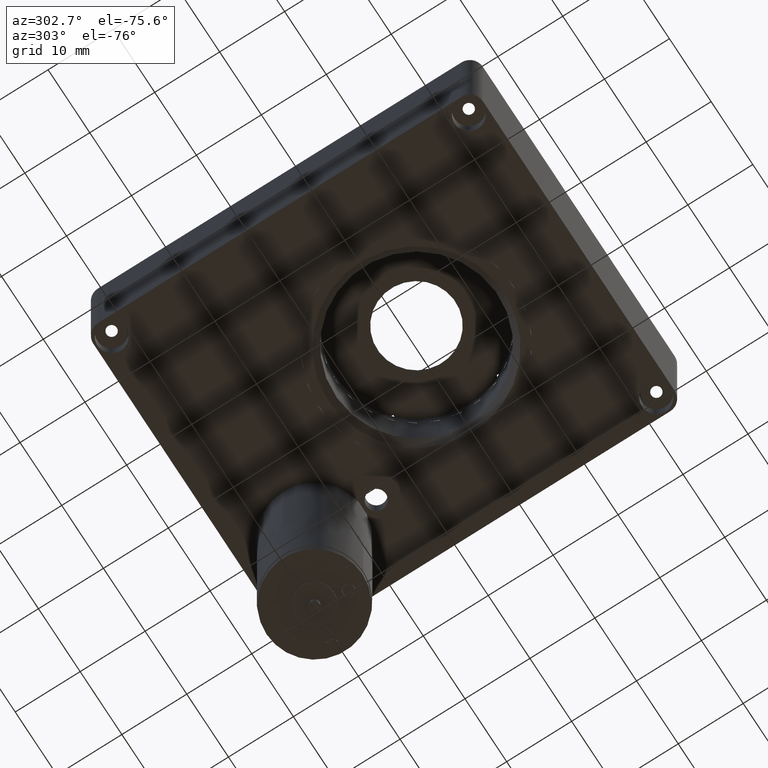
[diagram: clean part render]
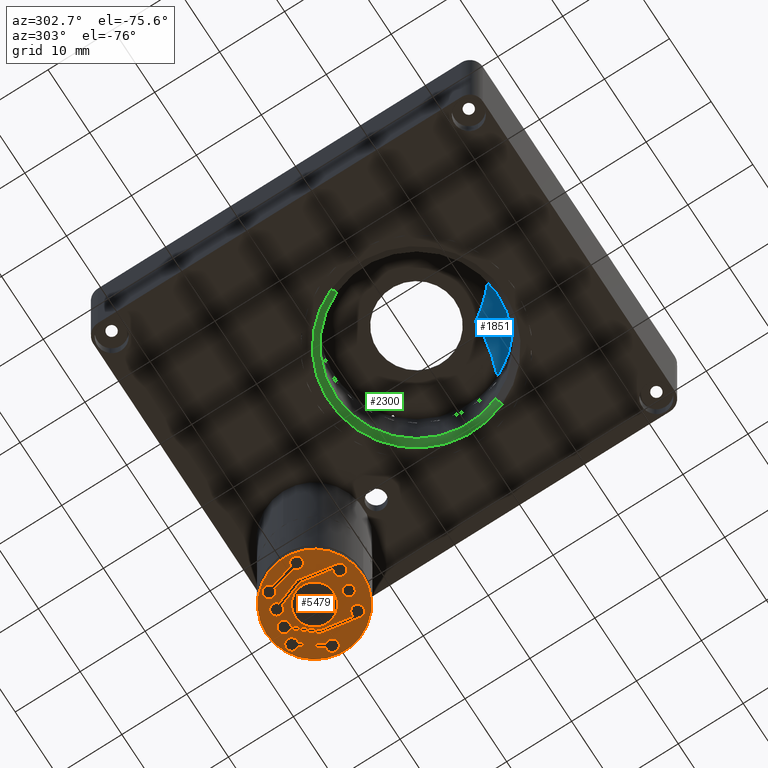
[diagram: same view with three faces highlighted in distinct colors, each labeled with its STEP entity id]
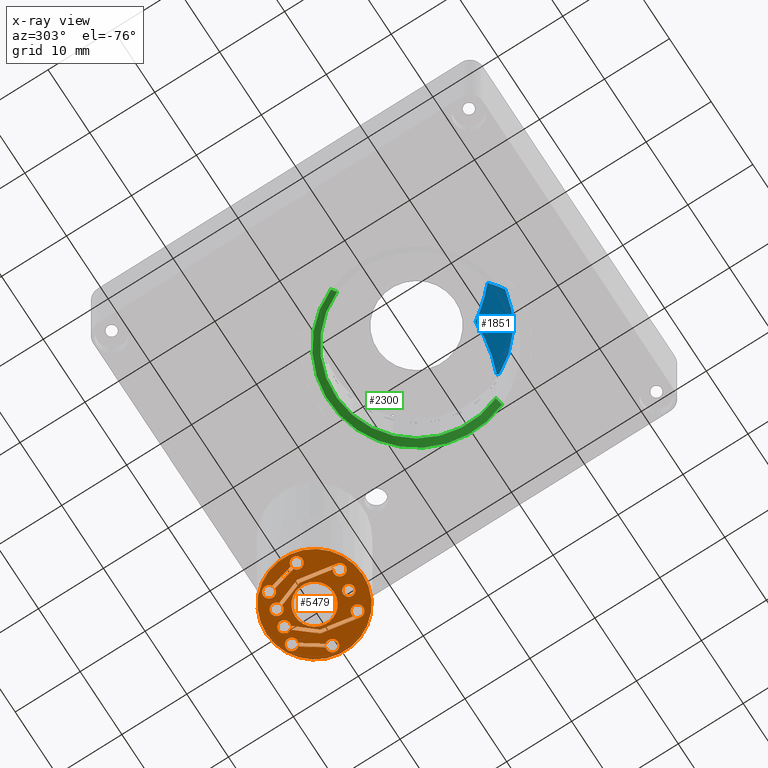
[diagram: x-ray of the same camera — body ghosted, the three highlighted faces saturated]
A machine part, auxiliary view with three faces highlighted in distinct colors.
The next image is the same camera in x-ray (body ghosted, the three faces saturated) — at least one of them is partly hidden behind the body in this view.
Their STEP definitions:

[orange] entity #5479 — the highlighted planar face has unit normal (0, -0, -1).
#34 = CIRCLE ( 'NONE', #9846, 0.8999999999999980200 ) ;
#36 = CARTESIAN_POINT ( 'NONE',  ( 43.18793451183786700, 45.73539894753411500, -37.40000000000000600 ) ) ;
#41 = ORIENTED_EDGE ( 'NONE', *, *, #217, .F. ) ;
#186 = CARTESIAN_POINT ( 'NONE',  ( 34.81437120822219800, 54.90700928653949800, -37.40000000000000600 ) ) ;
#215 = AXIS2_PLACEMENT_3D ( 'NONE', #4248, #9922, #5045 ) ;
#217 = EDGE_CURVE ( 'NONE', #3076, #235, #4237, .T. ) ;
#235 = VERTEX_POINT ( 'NONE', #5058 ) ;
#390 = CARTESIAN_POINT ( 'NONE',  ( 43.18793451183786700, 45.73539894753411500, -37.40000000000000600 ) ) ;
#411 = ORIENTED_EDGE ( 'NONE', *, *, #6657, .F. ) ;
#425 = DIRECTION ( 'NONE',  ( 1.063288424787887300E-017, -6.030208312509483200E-017, -1.000000000000000000 ) ) ;
#465 = VERTEX_POINT ( 'NONE', #10243 ) ;
#478 = CARTESIAN_POINT ( 'NONE',  ( 42.63296159512846400, 51.18631495370578900, -37.40000000000000600 ) ) ;
#495 = CARTESIAN_POINT ( 'NONE',  ( 41.78084026090235200, 55.67083539640120200, -37.40000000000000600 ) ) ;
#499 = ORIENTED_EDGE ( 'NONE', *, *, #8301, .F. ) ;
#506 = AXIS2_PLACEMENT_3D ( 'NONE', #4164, #9838, #4967 ) ;
#537 = CIRCLE ( 'NONE', #7033, 0.8999999999999980200 ) ;
#560 = FACE_BOUND ( 'NONE', #9895, .T. ) ;
#583 = ORIENTED_EDGE ( 'NONE', *, *, #8144, .F. ) ;
#643 = EDGE_CURVE ( 'NONE', #816, #9766, #1146, .T. ) ;
#645 = CARTESIAN_POINT ( 'NONE',  ( 36.78095999516297400, 53.72422176404236900, -37.40000000000000600 ) ) ;
#662 = CARTESIAN_POINT ( 'NONE',  ( 39.81719459352421400, 55.78914202908750000, -37.40000000000000600 ) ) ;
#663 = CARTESIAN_POINT ( 'NONE',  ( 43.18793451183786700, 44.83539894753411700, -37.40000000000000600 ) ) ;
#690 = DIRECTION ( 'NONE',  ( 1.063288424787887300E-017, -6.030208312509483200E-017, -1.000000000000000000 ) ) ;
#707 = ORIENTED_EDGE ( 'NONE', *, *, #10487, .F. ) ;
#719 = AXIS2_PLACEMENT_3D ( 'NONE', #1480, #7137, #2287 ) ;
#751 = DIRECTION ( 'NONE',  ( 1.063288424787887300E-017, -6.030208312509483200E-017, -1.000000000000000000 ) ) ;
#816 = VERTEX_POINT ( 'NONE', #2696 ) ;
#823 = VERTEX_POINT ( 'NONE', #1116 ) ;
#833 = DIRECTION ( 'NONE',  ( 0.0000000000000000000, -1.000000000000000000, 0.0000000000000000000 ) ) ;
#860 = CIRCLE ( 'NONE', #7830, 7.399999999999996800 ) ;
#898 = ORIENTED_EDGE ( 'NONE', *, *, #6774, .F. ) ;
#1027 = FACE_BOUND ( 'NONE', #5647, .T. ) ;
#1048 = EDGE_CURVE ( 'NONE', #4343, #6848, #1499, .T. ) ;
#1052 = VECTOR ( 'NONE', #1595, 1000.000000000000000 ) ;
#1077 = CARTESIAN_POINT ( 'NONE',  ( 39.39999999999997700, 49.94153162899190300, -37.40000000000000600 ) ) ;
#1095 = VERTEX_POINT ( 'NONE', #3091 ) ;
#1099 = EDGE_CURVE ( 'NONE', #235, #2080, #1615, .T. ) ;
#1116 = CARTESIAN_POINT ( 'NONE',  ( 35.42033122111882200, 50.05214993850064100, -37.40000000000000600 ) ) ;
#1129 = EDGE_CURVE ( 'NONE', #6380, #2045, #860, .T. ) ;
#1144 = CARTESIAN_POINT ( 'NONE',  ( 37.27908799376462000, 45.59350988153254000, -37.40000000000000600 ) ) ;
#1146 = CIRCLE ( 'NONE', #6365, 0.8499999999999965400 ) ;
#1194 = LINE ( 'NONE', #9357, #7379 ) ;
#1197 = DIRECTION ( 'NONE',  ( 0.0000000000000000000, -1.000000000000000000, 0.0000000000000000000 ) ) ;
#1201 = EDGE_CURVE ( 'NONE', #4217, #9916, #3807, .T. ) ;
#1217 = CARTESIAN_POINT ( 'NONE',  ( 36.39276101605363300, 44.53722652163229200, -37.40000000000000600 ) ) ;
#1257 = DIRECTION ( 'NONE',  ( 1.063288424787887300E-017, -6.030208312509483200E-017, -1.000000000000000000 ) ) ;
#1278 = ORIENTED_EDGE ( 'NONE', *, *, #3301, .F. ) ;
#1287 = DIRECTION ( 'NONE',  ( 1.063288424787887300E-017, -6.030208312509483200E-017, -1.000000000000000000 ) ) ;
#1356 = CARTESIAN_POINT ( 'NONE',  ( 35.05638095498979800, 53.94430934659146000, -37.40000000000000600 ) ) ;
#1361 = CIRCLE ( 'NONE', #8864, 7.399999999999996800 ) ;
#1377 = AXIS2_PLACEMENT_3D ( 'NONE', #2202, #7846, #2991 ) ;
#1401 = ORIENTED_EDGE ( 'NONE', *, *, #1129, .T. ) ;
#1463 = ORIENTED_EDGE ( 'NONE', *, *, #3708, .F. ) ;
#1480 = CARTESIAN_POINT ( 'NONE',  ( 39.39999999999997700, 49.94153162899190300, -37.40000000000000600 ) ) ;
#1482 = VERTEX_POINT ( 'NONE', #6117 ) ;
#1499 = LINE ( 'NONE', #3447, #9614 ) ;
#1510 = AXIS2_PLACEMENT_3D ( 'NONE', #3845, #9524, #4658 ) ;
#1557 = CARTESIAN_POINT ( 'NONE',  ( 34.57236146145462600, 54.06970922648755400, -37.40000000000000600 ) ) ;
#1593 = EDGE_CURVE ( 'NONE', #7910, #8401, #9381, .T. ) ;
#1595 = DIRECTION ( 'NONE',  ( 0.2507997597921659000, 0.9680389870703514100, -5.570804265138296700E-017 ) ) ;
#1615 = CIRCLE ( 'NONE', #4037, 0.8999999999999980200 ) ;
#1692 = EDGE_CURVE ( 'NONE', #7849, #6874, #537, .T. ) ;
#1806 = CARTESIAN_POINT ( 'NONE',  ( 40.23351125280123600, 44.36445441453332000, -37.40000000000000600 ) ) ;
#1827 = CARTESIAN_POINT ( 'NONE',  ( 39.39999999999997700, 49.94153162899190300, -37.40000000000000600 ) ) ;
#1830 = CIRCLE ( 'NONE', #6766, 0.8999999999999980200 ) ;
#1884 = DIRECTION ( 'NONE',  ( 2.312964634635740700E-015, -1.000000000000000000, 0.0000000000000000000 ) ) ;
#1891 = EDGE_CURVE ( 'NONE', #7980, #4343, #3147, .T. ) ;
#1928 = EDGE_CURVE ( 'NONE', #6390, #7849, #7565, .T. ) ;
#1931 = CARTESIAN_POINT ( 'NONE',  ( 37.27908799376462000, 44.69350988153254200, -37.40000000000000600 ) ) ;
#1985 = CARTESIAN_POINT ( 'NONE',  ( 44.07426148954884600, 45.89168230743434400, -37.40000000000000600 ) ) ;
#2044 = VERTEX_POINT ( 'NONE', #8703 ) ;
#2045 = VERTEX_POINT ( 'NONE', #5464 ) ;
#2074 = VERTEX_POINT ( 'NONE', #645 ) ;
#2080 = VERTEX_POINT ( 'NONE', #2257 ) ;
#2098 = CIRCLE ( 'NONE', #6723, 0.8999999999999980200 ) ;
#2102 = VECTOR ( 'NONE', #3013, 1000.000000000000000 ) ;
#2202 = CARTESIAN_POINT ( 'NONE',  ( 34.81437120822219800, 54.00700928653950000, -37.40000000000000600 ) ) ;
#2211 = ORIENTED_EDGE ( 'NONE', *, *, #7324, .T. ) ;
#2246 = LINE ( 'NONE', #495, #6302 ) ;
#2257 = CARTESIAN_POINT ( 'NONE',  ( 44.61286351946834100, 51.55404111668637800, -37.40000000000000600 ) ) ;
#2287 = DIRECTION ( 'NONE',  ( 3.441691376337984500E-015, -1.000000000000000000, 6.030208312509486900E-017 ) ) ;
#2308 = CIRCLE ( 'NONE', #3356, 0.8999999999999980200 ) ;
#2338 = DIRECTION ( 'NONE',  ( 1.063288424787887300E-017, -6.030208312509483200E-017, -1.000000000000000000 ) ) ;
#2391 = CARTESIAN_POINT ( 'NONE',  ( 39.39999999999997700, 49.94153162899190300, -37.40000000000000600 ) ) ;
#2478 = CIRCLE ( 'NONE', #7505, 0.8499999999999965400 ) ;
#2529 = CARTESIAN_POINT ( 'NONE',  ( 35.42033122111882200, 50.05214993850064100, -37.40000000000000600 ) ) ;
#2549 = AXIS2_PLACEMENT_3D ( 'NONE', #7180, #2338, #7984 ) ;
#2611 = CARTESIAN_POINT ( 'NONE',  ( 39.39999999999997000, 52.94153162899191000, -37.40000000000000600 ) ) ;
#2621 = DIRECTION ( 'NONE',  ( 2.312964634635740700E-015, -1.000000000000000000, 0.0000000000000000000 ) ) ;
#2663 = FACE_OUTER_BOUND ( 'NONE', #2725, .T. ) ;
#2696 = CARTESIAN_POINT ( 'NONE',  ( 40.23351125280123600, 46.06445441453331600, -37.40000000000000600 ) ) ;
#2725 = EDGE_LOOP ( 'NONE', ( #2211, #1401 ) ) ;
#2733 = DIRECTION ( 'NONE',  ( 0.0000000000000000000, -1.000000000000000000, 0.0000000000000000000 ) ) ;
#2775 = AXIS2_PLACEMENT_3D ( 'NONE', #3026, #8717, #3851 ) ;
#2788 = DIRECTION ( 'NONE',  ( 0.1736481776669300800, -0.9848077530122081300, 6.123233995736764800E-017 ) ) ;
#2860 = VERTEX_POINT ( 'NONE', #6165 ) ;
#2899 = ORIENTED_EDGE ( 'NONE', *, *, #2914, .F. ) ;
#2914 = EDGE_CURVE ( 'NONE', #10227, #6582, #5046, .T. ) ;
#2939 = ORIENTED_EDGE ( 'NONE', *, *, #1201, .F. ) ;
#2968 = VECTOR ( 'NONE', #7783, 1000.000000000000000 ) ;
#2991 = DIRECTION ( 'NONE',  ( 0.0000000000000000000, -1.000000000000000000, 0.0000000000000000000 ) ) ;
#3013 = DIRECTION ( 'NONE',  ( -0.6472076336421767100, 0.7623137667360429000, -5.285079198198189300E-017 ) ) ;
#3026 = CARTESIAN_POINT ( 'NONE',  ( 37.31578290087320200, 54.44807565781350400, -37.40000000000000600 ) ) ;
#3066 = ORIENTED_EDGE ( 'NONE', *, *, #1099, .F. ) ;
#3076 = VERTEX_POINT ( 'NONE', #5634 ) ;
#3091 = CARTESIAN_POINT ( 'NONE',  ( 34.35552479865268800, 53.23276128206988700, -37.40000000000000600 ) ) ;
#3104 = VECTOR ( 'NONE', #6809, 1000.000000000000000 ) ;
#3117 = CARTESIAN_POINT ( 'NONE',  ( 43.44185797645543800, 46.59883561233159100, -37.40000000000000600 ) ) ;
#3147 = CIRCLE ( 'NONE', #1510, 0.8999999999999980200 ) ;
#3182 = LINE ( 'NONE', #2529, #7478 ) ;
#3193 = DIRECTION ( 'NONE',  ( 3.750753461571476200E-015, -1.000000000000000000, 0.0000000000000000000 ) ) ;
#3198 = LINE ( 'NONE', #1557, #1052 ) ;
#3254 = LINE ( 'NONE', #1217, #9743 ) ;
#3301 = EDGE_CURVE ( 'NONE', #2074, #4949, #34, .T. ) ;
#3319 = CARTESIAN_POINT ( 'NONE',  ( 36.74516525597241700, 45.41802800419647200, -37.40000000000000600 ) ) ;
#3356 = AXIS2_PLACEMENT_3D ( 'NONE', #3627, #9301, #4450 ) ;
#3415 = ORIENTED_EDGE ( 'NONE', *, *, #8514, .F. ) ;
#3447 = CARTESIAN_POINT ( 'NONE',  ( 43.10183169461404200, 51.40660572430270700, -37.40000000000000600 ) ) ;
#3456 = ORIENTED_EDGE ( 'NONE', *, *, #3654, .F. ) ;
#3548 = VERTEX_POINT ( 'NONE', #7436 ) ;
#3593 = EDGE_CURVE ( 'NONE', #1482, #3548, #8701, .T. ) ;
#3595 = CIRCLE ( 'NONE', #506, 0.8999999999999980200 ) ;
#3627 = CARTESIAN_POINT ( 'NONE',  ( 33.49115348192673000, 48.89964256299032300, -37.40000000000000600 ) ) ;
#3654 = EDGE_CURVE ( 'NONE', #2860, #7910, #4234, .T. ) ;
#3660 = ORIENTED_EDGE ( 'NONE', *, *, #6229, .F. ) ;
#3708 = EDGE_CURVE ( 'NONE', #9916, #9910, #9705, .T. ) ;
#3749 = VECTOR ( 'NONE', #2788, 1000.000000000000000 ) ;
#3778 = CARTESIAN_POINT ( 'NONE',  ( 40.18617946057382500, 54.06825825662737400, -37.40000000000000600 ) ) ;
#3807 = CIRCLE ( 'NONE', #7627, 0.8999999999999980200 ) ;
#3836 = EDGE_CURVE ( 'NONE', #8401, #7980, #4496, .T. ) ;
#3845 = CARTESIAN_POINT ( 'NONE',  ( 39.81719459352421400, 54.88914202908750200, -37.40000000000000600 ) ) ;
#3851 = DIRECTION ( 'NONE',  ( 0.0000000000000000000, -1.000000000000000000, 0.0000000000000000000 ) ) ;
#3856 = ORIENTED_EDGE ( 'NONE', *, *, #643, .F. ) ;
#3887 = ORIENTED_EDGE ( 'NONE', *, *, #4443, .F. ) ;
#3896 = CARTESIAN_POINT ( 'NONE',  ( 42.31860628617521800, 55.33020840036151400, -37.40000000000000600 ) ) ;
#3924 = VERTEX_POINT ( 'NONE', #6479 ) ;
#3926 = DIRECTION ( 'NONE',  ( 1.063288424787887300E-017, -6.030208312509483200E-017, -1.000000000000000000 ) ) ;
#3951 = CARTESIAN_POINT ( 'NONE',  ( 33.94999989149622600, 49.67389056745993500, -37.40000000000000600 ) ) ;
#4010 = AXIS2_PLACEMENT_3D ( 'NONE', #1077, #6731, #1884 ) ;
#4037 = AXIS2_PLACEMENT_3D ( 'NONE', #5558, #751, #6405 ) ;
#4164 = CARTESIAN_POINT ( 'NONE',  ( 42.31860628617521800, 55.33020840036151400, -37.40000000000000600 ) ) ;
#4178 = VERTEX_POINT ( 'NONE', #10225 ) ;
#4217 = VERTEX_POINT ( 'NONE', #4603 ) ;
#4234 = LINE ( 'NONE', #478, #2102 ) ;
#4237 = LINE ( 'NONE', #5995, #3104 ) ;
#4243 = EDGE_CURVE ( 'NONE', #7020, #5729, #7453, .T. ) ;
#4248 = CARTESIAN_POINT ( 'NONE',  ( 37.27908799376462000, 44.69350988153254200, -37.40000000000000600 ) ) ;
#4274 = DIRECTION ( 'NONE',  ( 0.6472076336421763700, -0.7623137667360431200, 5.285079198198188100E-017 ) ) ;
#4343 = VERTEX_POINT ( 'NONE', #8071 ) ;
#4367 = CARTESIAN_POINT ( 'NONE',  ( 37.27908799376462000, 44.69350988153254200, -37.40000000000000600 ) ) ;
#4406 = CARTESIAN_POINT ( 'NONE',  ( 37.31578290087320200, 54.44807565781350400, -37.40000000000000600 ) ) ;
#4443 = EDGE_CURVE ( 'NONE', #3548, #823, #3254, .T. ) ;
#4450 = DIRECTION ( 'NONE',  ( 0.0000000000000000000, -1.000000000000000000, 0.0000000000000000000 ) ) ;
#4469 = CIRCLE ( 'NONE', #4669, 3.000000000000002700 ) ;
#4482 = EDGE_CURVE ( 'NONE', #6582, #5042, #5010, .T. ) ;
#4496 = CIRCLE ( 'NONE', #2549, 0.8999999999999980200 ) ;
#4568 = FACE_BOUND ( 'NONE', #7755, .T. ) ;
#4579 = CARTESIAN_POINT ( 'NONE',  ( 39.81719459352421400, 54.88914202908750200, -37.40000000000000600 ) ) ;
#4603 = CARTESIAN_POINT ( 'NONE',  ( 37.31578290087320200, 53.54807565781350600, -37.40000000000000600 ) ) ;
#4651 = DIRECTION ( 'NONE',  ( 1.063288424787887300E-017, -6.030208312509483200E-017, -1.000000000000000000 ) ) ;
#4658 = DIRECTION ( 'NONE',  ( 0.0000000000000000000, -1.000000000000000000, 0.0000000000000000000 ) ) ;
#4665 = CARTESIAN_POINT ( 'NONE',  ( 39.40000000000000600, 42.54153162899190500, -37.40000000000000600 ) ) ;
#4669 = AXIS2_PLACEMENT_3D ( 'NONE', #1827, #7480, #2621 ) ;
#4705 = DIRECTION ( 'NONE',  ( 0.0000000000000000000, -1.000000000000000000, 0.0000000000000000000 ) ) ;
#4706 = DIRECTION ( 'NONE',  ( 1.063288424787887300E-017, -6.030208312509483200E-017, -1.000000000000000000 ) ) ;
#4725 = VECTOR ( 'NONE', #7413, 1000.000000000000100 ) ;
#4934 = CARTESIAN_POINT ( 'NONE',  ( 42.31860628617521800, 54.43020840036151500, -37.40000000000000600 ) ) ;
#4947 = EDGE_LOOP ( 'NONE', ( #5091, #6398, #6611, #5020, #9584, #3456, #411, #6276, #5193, #10197 ) ) ;
#4949 = VERTEX_POINT ( 'NONE', #10275 ) ;
#4967 = DIRECTION ( 'NONE',  ( 0.0000000000000000000, -1.000000000000000000, 0.0000000000000000000 ) ) ;
#4988 = DIRECTION ( 'NONE',  ( 0.3474495736916693400, 0.9376986689451346500, -5.285079198198190500E-017 ) ) ;
#5010 = LINE ( 'NONE', #1356, #7203 ) ;
#5020 = ORIENTED_EDGE ( 'NONE', *, *, #3836, .F. ) ;
#5042 = VERTEX_POINT ( 'NONE', #3951 ) ;
#5045 = DIRECTION ( 'NONE',  ( 0.0000000000000000000, -1.000000000000000000, 0.0000000000000000000 ) ) ;
#5046 = CIRCLE ( 'NONE', #1377, 0.8999999999999980200 ) ;
#5058 = CARTESIAN_POINT ( 'NONE',  ( 45.02480378096479500, 51.83742287502347100, -37.40000000000000600 ) ) ;
#5091 = ORIENTED_EDGE ( 'NONE', *, *, #7181, .F. ) ;
#5166 = DIRECTION ( 'NONE',  ( 0.0000000000000000000, -1.000000000000000000, 0.0000000000000000000 ) ) ;
#5189 = EDGE_CURVE ( 'NONE', #6140, #1482, #5212, .T. ) ;
#5193 = ORIENTED_EDGE ( 'NONE', *, *, #1928, .F. ) ;
#5212 = CIRCLE ( 'NONE', #215, 0.8999999999999980200 ) ;
#5213 = DIRECTION ( 'NONE',  ( 0.0000000000000000000, -1.000000000000000000, 0.0000000000000000000 ) ) ;
#5225 = EDGE_CURVE ( 'NONE', #9245, #3924, #8525, .T. ) ;
#5242 = CARTESIAN_POINT ( 'NONE',  ( 40.23351125280123600, 45.21445441453332100, -37.40000000000000600 ) ) ;
#5399 = DIRECTION ( 'NONE',  ( 0.0000000000000000000, -1.000000000000000000, 0.0000000000000000000 ) ) ;
#5464 = CARTESIAN_POINT ( 'NONE',  ( 39.39999999999994900, 57.34153162899190200, -37.40000000000000600 ) ) ;
#5479 = ADVANCED_FACE ( 'NONE', ( #560, #1027, #7248, #2663, #8892, #6715, #4568 ), #8735, .T. ) ;
#5509 = CARTESIAN_POINT ( 'NONE',  ( 37.31578290087320200, 54.44807565781350400, -37.40000000000000600 ) ) ;
#5527 = ORIENTED_EDGE ( 'NONE', *, *, #5225, .F. ) ;
#5558 = CARTESIAN_POINT ( 'NONE',  ( 45.30884651807322400, 50.98342069499349800, -37.40000000000000600 ) ) ;
#5613 = CIRCLE ( 'NONE', #9234, 0.8999999999999980200 ) ;
#5634 = CARTESIAN_POINT ( 'NONE',  ( 43.01458928478010100, 54.75958797866864100, -37.40000000000000600 ) ) ;
#5645 = DIRECTION ( 'NONE',  ( 1.063288424787887300E-017, -6.030208312509483200E-017, -1.000000000000000000 ) ) ;
#5647 = EDGE_LOOP ( 'NONE', ( #8101, #3887, #7187, #9395, #707, #898, #1463, #2939, #8684, #1278 ) ) ;
#5729 = VERTEX_POINT ( 'NONE', #4934 ) ;
#5789 = ORIENTED_EDGE ( 'NONE', *, *, #4482, .F. ) ;
#5921 = AXIS2_PLACEMENT_3D ( 'NONE', #4579, #10271, #5399 ) ;
#5948 = ORIENTED_EDGE ( 'NONE', *, *, #6436, .F. ) ;
#5995 = CARTESIAN_POINT ( 'NONE',  ( 42.19278052239882000, 55.95421715473830900, -37.40000000000000600 ) ) ;
#6024 = DIRECTION ( 'NONE',  ( 1.063288424787887300E-017, -6.030208312509483200E-017, -1.000000000000000000 ) ) ;
#6048 = CARTESIAN_POINT ( 'NONE',  ( 37.24980932963554600, 53.55049697719651600, -37.40000000000000600 ) ) ;
#6054 = DIRECTION ( 'NONE',  ( 0.0000000000000000000, -1.000000000000000000, 0.0000000000000000000 ) ) ;
#6096 = CARTESIAN_POINT ( 'NONE',  ( 34.81437120822219800, 54.00700928653950000, -37.40000000000000600 ) ) ;
#6112 = ORIENTED_EDGE ( 'NONE', *, *, #7398, .F. ) ;
#6117 = CARTESIAN_POINT ( 'NONE',  ( 37.27908799376462000, 43.79350988153254300, -37.40000000000000600 ) ) ;
#6138 = CARTESIAN_POINT ( 'NONE',  ( 39.39999999999997700, 49.94153162899190300, -37.40000000000000600 ) ) ;
#6140 = VERTEX_POINT ( 'NONE', #1144 ) ;
#6165 = CARTESIAN_POINT ( 'NONE',  ( 42.63296159512846400, 51.18631495370578900, -37.40000000000000600 ) ) ;
#6201 = DIRECTION ( 'NONE',  ( -0.2507997597921660100, -0.9680389870703513000, 5.570804265138296700E-017 ) ) ;
#6229 = EDGE_CURVE ( 'NONE', #1095, #10227, #2098, .T. ) ;
#6276 = ORIENTED_EDGE ( 'NONE', *, *, #1692, .F. ) ;
#6302 = VECTOR ( 'NONE', #9130, 999.9999999999998900 ) ;
#6338 = DIRECTION ( 'NONE',  ( 0.0000000000000000000, -1.000000000000000000, 0.0000000000000000000 ) ) ;
#6365 = AXIS2_PLACEMENT_3D ( 'NONE', #5242, #425, #6054 ) ;
#6380 = VERTEX_POINT ( 'NONE', #4665 ) ;
#6390 = VERTEX_POINT ( 'NONE', #663 ) ;
#6398 = ORIENTED_EDGE ( 'NONE', *, *, #1048, .F. ) ;
#6405 = DIRECTION ( 'NONE',  ( 0.0000000000000000000, -1.000000000000000000, 0.0000000000000000000 ) ) ;
#6436 = EDGE_CURVE ( 'NONE', #4178, #3076, #5613, .T. ) ;
#6454 = CARTESIAN_POINT ( 'NONE',  ( 34.83954429218786700, 53.10736140217382200, -37.40000000000000600 ) ) ;
#6479 = CARTESIAN_POINT ( 'NONE',  ( 39.39999999999998400, 46.94153162899190300, -37.40000000000000600 ) ) ;
#6483 = ORIENTED_EDGE ( 'NONE', *, *, #10354, .F. ) ;
#6582 = VERTEX_POINT ( 'NONE', #6454 ) ;
#6611 = ORIENTED_EDGE ( 'NONE', *, *, #1891, .F. ) ;
#6615 = CARTESIAN_POINT ( 'NONE',  ( 43.58185761304275000, 45.80485821860087700, -37.40000000000000600 ) ) ;
#6657 = EDGE_CURVE ( 'NONE', #6874, #2860, #9033, .T. ) ;
#6695 = ORIENTED_EDGE ( 'NONE', *, *, #7546, .F. ) ;
#6715 = FACE_BOUND ( 'NONE', #4947, .T. ) ;
#6723 = AXIS2_PLACEMENT_3D ( 'NONE', #6096, #1257, #6912 ) ;
#6731 = DIRECTION ( 'NONE',  ( 1.063288424787887300E-017, -6.030208312509483200E-017, -1.000000000000000000 ) ) ;
#6737 = AXIS2_PLACEMENT_3D ( 'NONE', #3896, #9579, #4705 ) ;
#6766 = AXIS2_PLACEMENT_3D ( 'NONE', #36, #5645, #833 ) ;
#6774 = EDGE_CURVE ( 'NONE', #9910, #9200, #1194, .T. ) ;
#6809 = DIRECTION ( 'NONE',  ( 0.5667635166742082100, -0.8238805229929182500, 5.570804265138322600E-017 ) ) ;
#6848 = VERTEX_POINT ( 'NONE', #10384 ) ;
#6874 = VERTEX_POINT ( 'NONE', #3117 ) ;
#6891 = CIRCLE ( 'NONE', #2775, 0.8999999999999980200 ) ;
#6912 = DIRECTION ( 'NONE',  ( 0.0000000000000000000, -1.000000000000000000, 0.0000000000000000000 ) ) ;
#6943 = DIRECTION ( 'NONE',  ( 3.750753461571476200E-015, -1.000000000000000000, 0.0000000000000000000 ) ) ;
#6962 = CARTESIAN_POINT ( 'NONE',  ( 35.93626887464545700, 50.00550734557065600, -37.40000000000000600 ) ) ;
#7020 = VERTEX_POINT ( 'NONE', #8205 ) ;
#7033 = AXIS2_PLACEMENT_3D ( 'NONE', #9514, #4651, #10351 ) ;
#7137 = DIRECTION ( 'NONE',  ( 1.063288424787887300E-017, -6.030208312509483200E-017, -1.000000000000000000 ) ) ;
#7180 = CARTESIAN_POINT ( 'NONE',  ( 39.81719459352421400, 54.88914202908750200, -37.40000000000000600 ) ) ;
#7181 = EDGE_CURVE ( 'NONE', #6848, #2044, #10505, .T. ) ;
#7187 = ORIENTED_EDGE ( 'NONE', *, *, #3593, .F. ) ;
#7203 = VECTOR ( 'NONE', #6201, 1000.000000000000100 ) ;
#7248 = FACE_BOUND ( 'NONE', #10021, .T. ) ;
#7324 = EDGE_CURVE ( 'NONE', #2045, #6380, #1361, .T. ) ;
#7379 = VECTOR ( 'NONE', #10199, 1000.000000000000100 ) ;
#7398 = EDGE_CURVE ( 'NONE', #2080, #7020, #2246, .T. ) ;
#7413 = DIRECTION ( 'NONE',  ( -0.1736481776669296100, 0.9848077530122081300, -6.123233995736754900E-017 ) ) ;
#7436 = CARTESIAN_POINT ( 'NONE',  ( 36.39276101605363300, 44.53722652163229200, -37.40000000000000600 ) ) ;
#7453 = CIRCLE ( 'NONE', #6737, 0.8999999999999980200 ) ;
#7478 = VECTOR ( 'NONE', #4988, 1000.000000000000000 ) ;
#7480 = DIRECTION ( 'NONE',  ( 1.063288424787887300E-017, -6.030208312509483200E-017, -1.000000000000000000 ) ) ;
#7505 = AXIS2_PLACEMENT_3D ( 'NONE', #9580, #4706, #10407 ) ;
#7546 = EDGE_CURVE ( 'NONE', #9766, #816, #2478, .T. ) ;
#7565 = CIRCLE ( 'NONE', #8573, 0.8999999999999980200 ) ;
#7572 = DIRECTION ( 'NONE',  ( 1.063288424787887300E-017, -6.030208312509483200E-017, -1.000000000000000000 ) ) ;
#7627 = AXIS2_PLACEMENT_3D ( 'NONE', #5509, #690, #6338 ) ;
#7630 = CARTESIAN_POINT ( 'NONE',  ( 39.81719459352421400, 53.98914202908751000, -37.40000000000000600 ) ) ;
#7632 = EDGE_CURVE ( 'NONE', #2044, #6390, #1830, .T. ) ;
#7755 = EDGE_LOOP ( 'NONE', ( #3066, #41, #5948, #3415, #9192, #6112 ) ) ;
#7783 = DIRECTION ( 'NONE',  ( -0.3474495736916697900, -0.9376986689451345400, 5.285079198198189900E-017 ) ) ;
#7830 = AXIS2_PLACEMENT_3D ( 'NONE', #2391, #8052, #3193 ) ;
#7846 = DIRECTION ( 'NONE',  ( 1.063288424787887300E-017, -6.030208312509483200E-017, -1.000000000000000000 ) ) ;
#7849 = VERTEX_POINT ( 'NONE', #8492 ) ;
#7910 = VERTEX_POINT ( 'NONE', #3778 ) ;
#7980 = VERTEX_POINT ( 'NONE', #662 ) ;
#7984 = DIRECTION ( 'NONE',  ( 0.0000000000000000000, -1.000000000000000000, 0.0000000000000000000 ) ) ;
#8052 = DIRECTION ( 'NONE',  ( 1.063288424787887300E-017, -6.030208312509483200E-017, -1.000000000000000000 ) ) ;
#8071 = CARTESIAN_POINT ( 'NONE',  ( 40.56733634394184700, 54.39186207344847900, -37.40000000000000600 ) ) ;
#8101 = ORIENTED_EDGE ( 'NONE', *, *, #10205, .F. ) ;
#8144 = EDGE_CURVE ( 'NONE', #465, #1095, #3198, .T. ) ;
#8205 = CARTESIAN_POINT ( 'NONE',  ( 42.60264902328364700, 54.47620622033154800, -37.40000000000000600 ) ) ;
#8301 = EDGE_CURVE ( 'NONE', #3924, #9245, #4469, .T. ) ;
#8401 = VERTEX_POINT ( 'NONE', #7630 ) ;
#8492 = CARTESIAN_POINT ( 'NONE',  ( 43.18793451183786700, 46.63539894753411400, -37.40000000000000600 ) ) ;
#8499 = DIRECTION ( 'NONE',  ( -0.1736481776669301100, 0.9848077530122081300, -6.123233995736764800E-017 ) ) ;
#8514 = EDGE_CURVE ( 'NONE', #5729, #4178, #3595, .T. ) ;
#8525 = CIRCLE ( 'NONE', #4010, 3.000000000000002700 ) ;
#8573 = AXIS2_PLACEMENT_3D ( 'NONE', #390, #6024, #1197 ) ;
#8600 = AXIS2_PLACEMENT_3D ( 'NONE', #4367, #10032, #5166 ) ;
#8684 = ORIENTED_EDGE ( 'NONE', *, *, #8970, .F. ) ;
#8701 = CIRCLE ( 'NONE', #8600, 0.8999999999999980200 ) ;
#8703 = CARTESIAN_POINT ( 'NONE',  ( 44.07426148954884600, 45.89168230743434400, -37.40000000000000600 ) ) ;
#8717 = DIRECTION ( 'NONE',  ( 1.063288424787887300E-017, -6.030208312509483200E-017, -1.000000000000000000 ) ) ;
#8735 = PLANE ( 'NONE',  #719 ) ;
#8788 = CARTESIAN_POINT ( 'NONE',  ( 42.31860628617521800, 55.33020840036151400, -37.40000000000000600 ) ) ;
#8864 = AXIS2_PLACEMENT_3D ( 'NONE', #6138, #1287, #6943 ) ;
#8892 = FACE_BOUND ( 'NONE', #10450, .T. ) ;
#8970 = EDGE_CURVE ( 'NONE', #4949, #4217, #6891, .T. ) ;
#9033 = LINE ( 'NONE', #6615, #4725 ) ;
#9124 = CIRCLE ( 'NONE', #9365, 0.8999999999999980200 ) ;
#9130 = DIRECTION ( 'NONE',  ( -0.5667635166742083200, 0.8238805229929182500, -5.570804265138318900E-017 ) ) ;
#9192 = ORIENTED_EDGE ( 'NONE', *, *, #4243, .F. ) ;
#9200 = VERTEX_POINT ( 'NONE', #3319 ) ;
#9234 = AXIS2_PLACEMENT_3D ( 'NONE', #8788, #3926, #9607 ) ;
#9245 = VERTEX_POINT ( 'NONE', #2611 ) ;
#9274 = CARTESIAN_POINT ( 'NONE',  ( 35.93626887464545700, 50.00550734557065600, -37.40000000000000600 ) ) ;
#9301 = DIRECTION ( 'NONE',  ( 1.063288424787887300E-017, -6.030208312509483200E-017, -1.000000000000000000 ) ) ;
#9357 = CARTESIAN_POINT ( 'NONE',  ( 36.88516489255973600, 44.62405061046575800, -37.40000000000000600 ) ) ;
#9365 = AXIS2_PLACEMENT_3D ( 'NONE', #1931, #7572, #2733 ) ;
#9381 = CIRCLE ( 'NONE', #5921, 0.8999999999999980200 ) ;
#9395 = ORIENTED_EDGE ( 'NONE', *, *, #5189, .F. ) ;
#9514 = CARTESIAN_POINT ( 'NONE',  ( 43.18793451183786700, 45.73539894753411500, -37.40000000000000600 ) ) ;
#9524 = DIRECTION ( 'NONE',  ( 1.063288424787887300E-017, -6.030208312509483200E-017, -1.000000000000000000 ) ) ;
#9579 = DIRECTION ( 'NONE',  ( 1.063288424787887300E-017, -6.030208312509483200E-017, -1.000000000000000000 ) ) ;
#9580 = CARTESIAN_POINT ( 'NONE',  ( 40.23351125280123600, 45.21445441453332100, -37.40000000000000600 ) ) ;
#9584 = ORIENTED_EDGE ( 'NONE', *, *, #1593, .F. ) ;
#9607 = DIRECTION ( 'NONE',  ( 0.0000000000000000000, -1.000000000000000000, 0.0000000000000000000 ) ) ;
#9614 = VECTOR ( 'NONE', #4274, 1000.000000000000000 ) ;
#9705 = LINE ( 'NONE', #6962, #2968 ) ;
#9743 = VECTOR ( 'NONE', #8499, 1000.000000000000000 ) ;
#9766 = VERTEX_POINT ( 'NONE', #1806 ) ;
#9838 = DIRECTION ( 'NONE',  ( 1.063288424787887300E-017, -6.030208312509483200E-017, -1.000000000000000000 ) ) ;
#9846 = AXIS2_PLACEMENT_3D ( 'NONE', #4406, #10082, #5213 ) ;
#9895 = EDGE_LOOP ( 'NONE', ( #6483, #5789, #2899, #3660, #583 ) ) ;
#9910 = VERTEX_POINT ( 'NONE', #9274 ) ;
#9916 = VERTEX_POINT ( 'NONE', #6048 ) ;
#9922 = DIRECTION ( 'NONE',  ( 1.063288424787887300E-017, -6.030208312509483200E-017, -1.000000000000000000 ) ) ;
#10021 = EDGE_LOOP ( 'NONE', ( #6695, #3856 ) ) ;
#10032 = DIRECTION ( 'NONE',  ( 1.063288424787887300E-017, -6.030208312509483200E-017, -1.000000000000000000 ) ) ;
#10082 = DIRECTION ( 'NONE',  ( 1.063288424787887300E-017, -6.030208312509483200E-017, -1.000000000000000000 ) ) ;
#10197 = ORIENTED_EDGE ( 'NONE', *, *, #7632, .F. ) ;
#10199 = DIRECTION ( 'NONE',  ( 0.1736481776669300500, -0.9848077530122081300, 6.123233995736761100E-017 ) ) ;
#10205 = EDGE_CURVE ( 'NONE', #823, #2074, #3182, .T. ) ;
#10225 = CARTESIAN_POINT ( 'NONE',  ( 42.31860628617521800, 56.23020840036151200, -37.40000000000000600 ) ) ;
#10227 = VERTEX_POINT ( 'NONE', #186 ) ;
#10243 = CARTESIAN_POINT ( 'NONE',  ( 33.46598039796104700, 49.79929044735600700, -37.40000000000000600 ) ) ;
#10271 = DIRECTION ( 'NONE',  ( 1.063288424787887300E-017, -6.030208312509483200E-017, -1.000000000000000000 ) ) ;
#10275 = CARTESIAN_POINT ( 'NONE',  ( 37.31578290087320200, 55.34807565781350300, -37.40000000000000600 ) ) ;
#10351 = DIRECTION ( 'NONE',  ( 0.0000000000000000000, -1.000000000000000000, 0.0000000000000000000 ) ) ;
#10354 = EDGE_CURVE ( 'NONE', #5042, #465, #2308, .T. ) ;
#10384 = CARTESIAN_POINT ( 'NONE',  ( 43.10183169461404200, 51.40660572430270700, -37.40000000000000600 ) ) ;
#10407 = DIRECTION ( 'NONE',  ( 0.0000000000000000000, -1.000000000000000000, 0.0000000000000000000 ) ) ;
#10450 = EDGE_LOOP ( 'NONE', ( #5527, #499 ) ) ;
#10487 = EDGE_CURVE ( 'NONE', #9200, #6140, #9124, .T. ) ;
#10505 = LINE ( 'NONE', #1985, #3749 ) ;

[blue] entity #1851 — the highlighted planar face has unit normal (0, -0, -1).
#176 = AXIS2_PLACEMENT_3D ( 'NONE', #3549, #9217, #4377 ) ;
#480 = EDGE_CURVE ( 'NONE', #9758, #773, #2784, .T. ) ;
#556 = DIRECTION ( 'NONE',  ( 8.155362614957105700E-017, -2.017289381376930000E-017, -1.000000000000000000 ) ) ;
#579 = CARTESIAN_POINT ( 'NONE',  ( 36.12342884815294800, 19.77278716500934100, 8.000000000000005300 ) ) ;
#614 = EDGE_CURVE ( 'NONE', #10192, #773, #2167, .T. ) ;
#773 = VERTEX_POINT ( 'NONE', #5094 ) ;
#981 = CARTESIAN_POINT ( 'NONE',  ( 11.85029343216258200, 29.08686105275591400, 8.000000000000001800 ) ) ;
#1148 = DIRECTION ( 'NONE',  ( -8.155362614957104400E-017, 2.017289381376927500E-017, 1.000000000000000000 ) ) ;
#1475 = AXIS2_PLACEMENT_3D ( 'NONE', #5975, #1148, #6798 ) ;
#1798 = DIRECTION ( 'NONE',  ( 0.2967911793562074700, 0.9549424044707364200, 0.0000000000000000000 ) ) ;
#1851 = ADVANCED_FACE ( 'NONE', ( #4676 ), #9372, .T. ) ;
#1946 = VERTEX_POINT ( 'NONE', #7569 ) ;
#2167 = CIRCLE ( 'NONE', #1475, 20.00000000000001400 ) ;
#2194 = CARTESIAN_POINT ( 'NONE',  ( 25.00000000000000000, 25.00000000000000000, 8.000000000000003600 ) ) ;
#2258 = EDGE_CURVE ( 'NONE', #9758, #6821, #3264, .T. ) ;
#2302 = ORIENTED_EDGE ( 'NONE', *, *, #480, .T. ) ;
#2784 = CIRCLE ( 'NONE', #3829, 12.50000000000000900 ) ;
#2833 = CIRCLE ( 'NONE', #10400, 20.00000000000001800 ) ;
#2983 = DIRECTION ( 'NONE',  ( 0.2967911793562109100, 0.9549424044707354200, 0.0000000000000000000 ) ) ;
#3264 = CIRCLE ( 'NONE', #176, 20.00000000000001100 ) ;
#3549 = CARTESIAN_POINT ( 'NONE',  ( 17.04968136407886400, 13.75679540023954300, 8.000000000000001800 ) ) ;
#3757 = CARTESIAN_POINT ( 'NONE',  ( 28.51195853400982100, 38.26780053772495200, 8.000000000000003600 ) ) ;
#3829 = AXIS2_PLACEMENT_3D ( 'NONE', #2194, #7839, #2983 ) ;
#3931 = ORIENTED_EDGE ( 'NONE', *, *, #5359, .T. ) ;
#4377 = DIRECTION ( 'NONE',  ( 0.2967911793563567400, 0.9549424044706900100, 0.0000000000000000000 ) ) ;
#4569 = DIRECTION ( 'NONE',  ( 0.2967911793562108000, 0.9549424044707354200, 0.0000000000000000000 ) ) ;
#4676 = FACE_OUTER_BOUND ( 'NONE', #7686, .T. ) ;
#5094 = CARTESIAN_POINT ( 'NONE',  ( 27.10351624473418000, 12.67826232189065800, 8.000000000000003600 ) ) ;
#5359 = EDGE_CURVE ( 'NONE', #1946, #6821, #10028, .T. ) ;
#5372 = CARTESIAN_POINT ( 'NONE',  ( 25.00000000000000000, 25.00000000000000000, 8.000000000000003600 ) ) ;
#5660 = ORIENTED_EDGE ( 'NONE', *, *, #2258, .F. ) ;
#5813 = CARTESIAN_POINT ( 'NONE',  ( 36.21400914697532900, 19.47768175024711800, 8.000000000000005300 ) ) ;
#5975 = CARTESIAN_POINT ( 'NONE',  ( 38.04053273940344600, 29.42286354722094900, 8.000000000000003600 ) ) ;
#6194 = DIRECTION ( 'NONE',  ( 0.2967911793562108500, 0.9549424044707353100, 4.940445162053035600E-018 ) ) ;
#6651 = DIRECTION ( 'NONE',  ( -8.155362614957104400E-017, 2.017289381376927500E-017, 1.000000000000000000 ) ) ;
#6798 = DIRECTION ( 'NONE',  ( 0.2967911793562016400, 0.9549424044707380800, 0.0000000000000000000 ) ) ;
#6821 = VERTEX_POINT ( 'NONE', #579 ) ;
#7569 = CARTESIAN_POINT ( 'NONE',  ( 28.67176017758200100, 18.26843896204651700, 8.000000000000003600 ) ) ;
#7678 = AXIS2_PLACEMENT_3D ( 'NONE', #5372, #556, #6194 ) ;
#7686 = EDGE_LOOP ( 'NONE', ( #9182, #3931, #5660, #2302, #10150 ) ) ;
#7696 = EDGE_CURVE ( 'NONE', #10192, #1946, #2833, .T. ) ;
#7839 = DIRECTION ( 'NONE',  ( 8.155362614957104400E-017, -2.017289381376927500E-017, -1.000000000000000000 ) ) ;
#9182 = ORIENTED_EDGE ( 'NONE', *, *, #7696, .T. ) ;
#9217 = DIRECTION ( 'NONE',  ( -8.155362614957104400E-017, 2.017289381376927500E-017, 1.000000000000000000 ) ) ;
#9220 = AXIS2_PLACEMENT_3D ( 'NONE', #3757, #9441, #4569 ) ;
#9372 = PLANE ( 'NONE',  #7678 ) ;
#9441 = DIRECTION ( 'NONE',  ( -8.155362614957104400E-017, 2.017289381376927500E-017, 1.000000000000000000 ) ) ;
#9758 = VERTEX_POINT ( 'NONE', #5813 ) ;
#9859 = CARTESIAN_POINT ( 'NONE',  ( 25.13932323119107800, 14.14023310527113400, 8.000000000000003600 ) ) ;
#10028 = CIRCLE ( 'NONE', #9220, 20.00000000000028400 ) ;
#10150 = ORIENTED_EDGE ( 'NONE', *, *, #614, .F. ) ;
#10192 = VERTEX_POINT ( 'NONE', #9859 ) ;
#10400 = AXIS2_PLACEMENT_3D ( 'NONE', #981, #6651, #1798 ) ;

[green] entity #2300 — the highlighted conical surface has half-angle 45 deg.
#204 = AXIS2_PLACEMENT_3D ( 'NONE', #379, #6017, #1188 ) ;
#379 = CARTESIAN_POINT ( 'NONE',  ( 25.00000000000000000, 25.00000000000000000, -1.999999999999983600 ) ) ;
#687 = AXIS2_PLACEMENT_3D ( 'NONE', #1679, #7344, #2495 ) ;
#829 = CARTESIAN_POINT ( 'NONE',  ( 36.54273483717102500, 20.20257647494424400, -1.999999999999984000 ) ) ;
#1064 = CIRCLE ( 'NONE', #204, 12.50000000000000200 ) ;
#1188 = DIRECTION ( 'NONE',  ( -0.9234187869736817400, 0.3837938820044609100, 3.469446951953613600E-017 ) ) ;
#1679 = CARTESIAN_POINT ( 'NONE',  ( 25.00000000000000000, 25.00000000000000000, -2.999999999999997300 ) ) ;
#2128 = VECTOR ( 'NONE', #5014, 1000.000000000000000 ) ;
#2300 = ADVANCED_FACE ( 'NONE', ( #9503 ), #6345, .F. ) ;
#2495 = DIRECTION ( 'NONE',  ( -0.9234187869736818500, 0.3837938820044608500, 3.212450881438528000E-017 ) ) ;
#2614 = EDGE_CURVE ( 'NONE', #8152, #9919, #5917, .T. ) ;
#2765 = ORIENTED_EDGE ( 'NONE', *, *, #4039, .F. ) ;
#3483 = EDGE_CURVE ( 'NONE', #9919, #7587, #3779, .T. ) ;
#3601 = CARTESIAN_POINT ( 'NONE',  ( 37.46615362414472400, 19.81878259293977600, -2.999999999999997300 ) ) ;
#3626 = DIRECTION ( 'NONE',  ( -0.9234187869736817400, 0.3837938820044609100, 3.469446951953613600E-017 ) ) ;
#3779 = CIRCLE ( 'NONE', #687, 13.50000000000001600 ) ;
#4039 = EDGE_CURVE ( 'NONE', #7728, #8152, #1064, .T. ) ;
#4259 = LINE ( 'NONE', #5795, #2128 ) ;
#4409 = CARTESIAN_POINT ( 'NONE',  ( 25.00000000000000000, 25.00000000000000000, -1.999999999999983600 ) ) ;
#4506 = AXIS2_PLACEMENT_3D ( 'NONE', #4409, #5950, #3626 ) ;
#4870 = EDGE_CURVE ( 'NONE', #7728, #7587, #4259, .T. ) ;
#5014 = DIRECTION ( 'NONE',  ( -0.6529556861441475600, 0.2713832565432644000, -0.7071067811865463500 ) ) ;
#5679 = ORIENTED_EDGE ( 'NONE', *, *, #2614, .F. ) ;
#5795 = CARTESIAN_POINT ( 'NONE',  ( 13.45726516282897700, 29.79742352505576300, -1.999999999999983100 ) ) ;
#5917 = LINE ( 'NONE', #829, #9988 ) ;
#5950 = DIRECTION ( 'NONE',  ( -1.062777804602597500E-018, -6.083736123991347700E-017, -1.000000000000000000 ) ) ;
#6017 = DIRECTION ( 'NONE',  ( -1.062777804602597500E-018, -6.083736123991347700E-017, -1.000000000000000000 ) ) ;
#6345 = CONICAL_SURFACE ( 'NONE', #4506, 12.50000000000000200, 0.7853981633974500600 ) ;
#6453 = CARTESIAN_POINT ( 'NONE',  ( 36.54273483717102500, 20.20257647494424400, -1.999999999999983100 ) ) ;
#7344 = DIRECTION ( 'NONE',  ( 1.062777804602597500E-018, 6.083736123991347700E-017, 1.000000000000000000 ) ) ;
#7587 = VERTEX_POINT ( 'NONE', #10448 ) ;
#7656 = EDGE_LOOP ( 'NONE', ( #5679, #2765, #8210, #8045 ) ) ;
#7728 = VERTEX_POINT ( 'NONE', #8312 ) ;
#8045 = ORIENTED_EDGE ( 'NONE', *, *, #3483, .F. ) ;
#8152 = VERTEX_POINT ( 'NONE', #6453 ) ;
#8210 = ORIENTED_EDGE ( 'NONE', *, *, #4870, .T. ) ;
#8312 = CARTESIAN_POINT ( 'NONE',  ( 13.45726516282897700, 29.79742352505576300, -1.999999999999983100 ) ) ;
#8890 = DIRECTION ( 'NONE',  ( 0.6529556861441475600, -0.2713832565432644000, -0.7071067811865463500 ) ) ;
#9503 = FACE_OUTER_BOUND ( 'NONE', #7656, .T. ) ;
#9919 = VERTEX_POINT ( 'NONE', #3601 ) ;
#9988 = VECTOR ( 'NONE', #8890, 1000.000000000000000 ) ;
#10448 = CARTESIAN_POINT ( 'NONE',  ( 12.53384637585527800, 30.18121740706022700, -2.999999999999997300 ) ) ;